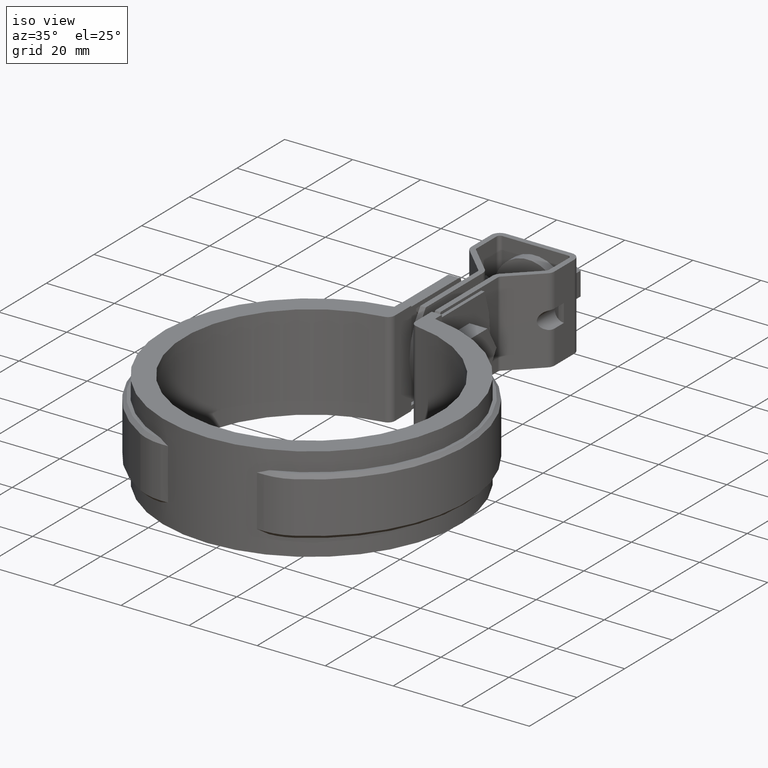
[diagram: clean part render]
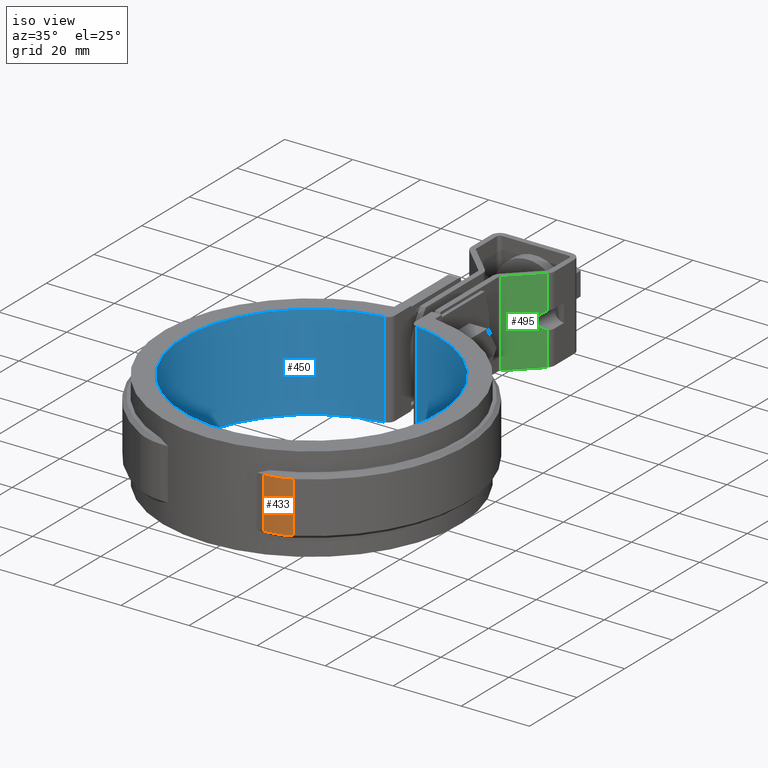
[diagram: same view with three faces highlighted in distinct colors, each labeled with its STEP entity id]
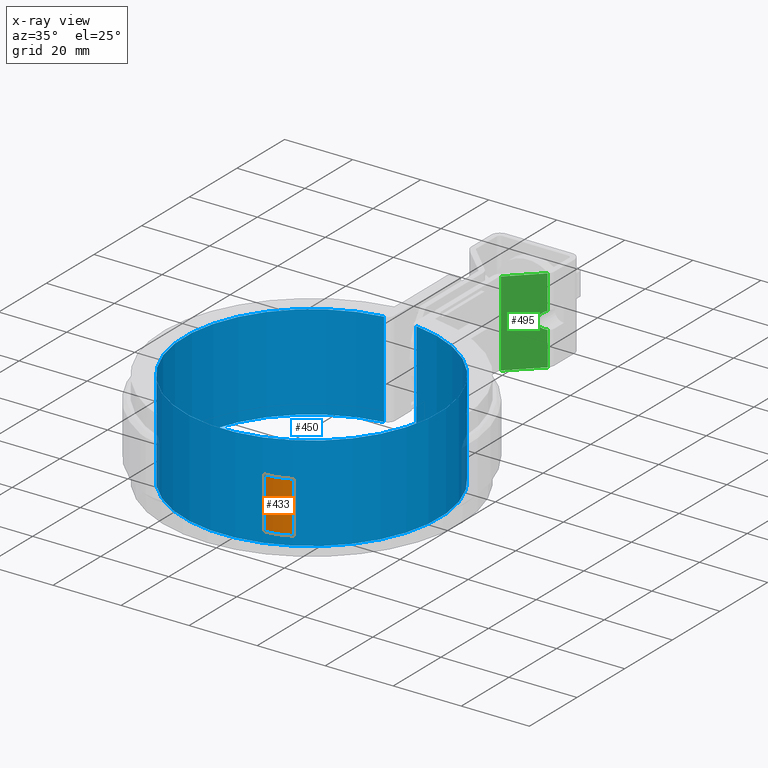
[diagram: x-ray of the same camera — body ghosted, the three highlighted faces saturated]
A machine part, iso view with three faces highlighted in distinct colors.
The next image is the same camera in x-ray (body ghosted, the three faces saturated) — at least one of them is partly hidden behind the body in this view.
Their STEP definitions:

[orange] entity #433 — the highlighted cylindrical surface (partial cylindrical patch) has radius 15 mm, axis along (0, 0, 1).
#433 = ADVANCED_FACE( '', ( #814 ), #815, .T. );
#814 = FACE_OUTER_BOUND( '', #1730, .T. );
#815 = CYLINDRICAL_SURFACE( '', #1731, 15.0000000000000 );
#1730 = EDGE_LOOP( '', ( #3390, #3391, #3392, #3393 ) );
#1731 = AXIS2_PLACEMENT_3D( '', #3394, #3395, #3396 );
#3390 = ORIENTED_EDGE( '', *, *, #5552, .F. );
#3391 = ORIENTED_EDGE( '', *, *, #5553, .T. );
#3392 = ORIENTED_EDGE( '', *, *, #5480, .T. );
#3393 = ORIENTED_EDGE( '', *, *, #5550, .T. );
#3394 = CARTESIAN_POINT( '', ( 15.1393526942205, -26.6500000000000, 8.50000000000000 ) );
#3395 = DIRECTION( '', ( 0.000000000000000, 0.000000000000000, 1.00000000000000 ) );
#3396 = DIRECTION( '', ( -0.109529025191676, -0.993983597772399, 0.000000000000000 ) );
#5480 = EDGE_CURVE( '', #6426, #6427, #6428, .T. );
#5550 = EDGE_CURVE( '', #6427, #6543, #6545, .T. );
#5552 = EDGE_CURVE( '', #6547, #6543, #6548, .T. );
#5553 = EDGE_CURVE( '', #6547, #6426, #6549, .F. );
#6426 = VERTEX_POINT( '', #8914 );
#6427 = VERTEX_POINT( '', #8915 );
#6428 = LINE( '', #8916, #8917 );
#6543 = VERTEX_POINT( '', #9110 );
#6545 = CIRCLE( '', #9113, 15.0000000000000 );
#6547 = VERTEX_POINT( '', #9115 );
#6548 = LINE( '', #9116, #9117 );
#6549 = CIRCLE( '', #9118, 15.0000000000000 );
#8914 = CARTESIAN_POINT( '', ( 15.1393526942205, -41.6500000000000, 7.50000000000000 ) );
#8915 = CARTESIAN_POINT( '', ( 15.1393526942205, -41.6500000000000, -7.50000000000000 ) );
#8916 = CARTESIAN_POINT( '', ( 15.1393526942205, -41.6500000000000, 8.50000000000000 ) );
#8917 = VECTOR( '', #10837, 1000.00000000000 );
#9110 = CARTESIAN_POINT( '', ( 22.5484975690429, -39.6924143556281, -7.50000000000000 ) );
#9113 = AXIS2_PLACEMENT_3D( '', #10951, #10952, #10953 );
#9115 = CARTESIAN_POINT( '', ( 22.5484975690429, -39.6924143556281, 7.50000000000000 ) );
#9116 = CARTESIAN_POINT( '', ( 22.5484975690429, -39.6924143556281, 8.50000000000000 ) );
#9117 = VECTOR( '', #10957, 1000.00000000000 );
#9118 = AXIS2_PLACEMENT_3D( '', #10958, #10959, #10960 );
#10837 = DIRECTION( '', ( 0.000000000000000, 0.000000000000000, -1.00000000000000 ) );
#10951 = CARTESIAN_POINT( '', ( 15.1393526942205, -26.6500000000000, -7.50000000000000 ) );
#10952 = DIRECTION( '', ( 0.000000000000000, 0.000000000000000, 1.00000000000000 ) );
#10953 = DIRECTION( '', ( 1.00000000000000, 0.000000000000000, 0.000000000000000 ) );
#10957 = DIRECTION( '', ( 0.000000000000000, 0.000000000000000, -1.00000000000000 ) );
#10958 = CARTESIAN_POINT( '', ( 15.1393526942205, -26.6500000000000, 7.50000000000000 ) );
#10959 = DIRECTION( '', ( 0.000000000000000, 0.000000000000000, 1.00000000000000 ) );
#10960 = DIRECTION( '', ( 1.00000000000000, 0.000000000000000, 0.000000000000000 ) );

[blue] entity #450 — the highlighted cylindrical surface (partial cylindrical patch) has radius 37.5 mm, axis along (0, 0, -1).
#450 = ADVANCED_FACE( '', ( #850 ), #851, .F. );
#850 = FACE_OUTER_BOUND( '', #1766, .T. );
#851 = CYLINDRICAL_SURFACE( '', #1767, 37.5000000000000 );
#1766 = EDGE_LOOP( '', ( #3532, #3533, #3534, #3535 ) );
#1767 = AXIS2_PLACEMENT_3D( '', #3536, #3537, #3538 );
#3532 = ORIENTED_EDGE( '', *, *, #5519, .T. );
#3533 = ORIENTED_EDGE( '', *, *, #5574, .T. );
#3534 = ORIENTED_EDGE( '', *, *, #5454, .F. );
#3535 = ORIENTED_EDGE( '', *, *, #5575, .T. );
#3536 = CARTESIAN_POINT( '', ( 0.000000000000000, 0.000000000000000, -14.0000000000000 ) );
#3537 = DIRECTION( '', ( 0.000000000000000, 0.000000000000000, -1.00000000000000 ) );
#3538 = DIRECTION( '', ( 1.00000000000000, -6.07153216591882E-017, 0.000000000000000 ) );
#5454 = EDGE_CURVE( '', #6376, #6378, #6379, .T. );
#5519 = EDGE_CURVE( '', #6498, #6496, #6499, .T. );
#5574 = EDGE_CURVE( '', #6496, #6378, #6576, .T. );
#5575 = EDGE_CURVE( '', #6376, #6498, #6577, .F. );
#6376 = VERTEX_POINT( '', #8794 );
#6378 = VERTEX_POINT( '', #8796 );
#6379 = CIRCLE( '', #8797, 37.5000000000000 );
#6496 = VERTEX_POINT( '', #9043 );
#6498 = VERTEX_POINT( '', #9045 );
#6499 = CIRCLE( '', #9046, 37.5000000000000 );
#6576 = LINE( '', #9160, #9161 );
#6577 = LINE( '', #9162, #9163 );
#8794 = CARTESIAN_POINT( '', ( 4.74683544303798, 37.1983541743008, 14.0000000000000 ) );
#8796 = CARTESIAN_POINT( '', ( -4.74683544303799, 37.1983541743008, 14.0000000000000 ) );
#8797 = AXIS2_PLACEMENT_3D( '', #10811, #10812, #10813 );
#9043 = CARTESIAN_POINT( '', ( -4.74683544303799, 37.1983541743008, -14.0000000000000 ) );
#9045 = CARTESIAN_POINT( '', ( 4.74683544303798, 37.1983541743008, -14.0000000000000 ) );
#9046 = AXIS2_PLACEMENT_3D( '', #10888, #10889, #10890 );
#9160 = CARTESIAN_POINT( '', ( -4.74683544303799, 37.1983541743008, -14.0000000000000 ) );
#9161 = VECTOR( '', #10991, 1000.00000000000 );
#9162 = CARTESIAN_POINT( '', ( 4.74683544303798, 37.1983541743008, -14.0000000000000 ) );
#9163 = VECTOR( '', #10992, 1000.00000000000 );
#10811 = CARTESIAN_POINT( '', ( 0.000000000000000, 0.000000000000000, 14.0000000000000 ) );
#10812 = DIRECTION( '', ( 0.000000000000000, 0.000000000000000, -1.00000000000000 ) );
#10813 = DIRECTION( '', ( 1.00000000000000, -6.07153216591882E-017, 0.000000000000000 ) );
#10888 = CARTESIAN_POINT( '', ( 0.000000000000000, 0.000000000000000, -14.0000000000000 ) );
#10889 = DIRECTION( '', ( 0.000000000000000, 0.000000000000000, -1.00000000000000 ) );
#10890 = DIRECTION( '', ( 1.00000000000000, -6.07153216591882E-017, 0.000000000000000 ) );
#10991 = DIRECTION( '', ( 0.000000000000000, 0.000000000000000, 1.00000000000000 ) );
#10992 = DIRECTION( '', ( 0.000000000000000, 0.000000000000000, 1.00000000000000 ) );

[green] entity #495 — the highlighted planar face has unit normal (0.6983, -0.7158, 0).
#495 = ADVANCED_FACE( '', ( #947 ), #948, .T. );
#947 = FACE_OUTER_BOUND( '', #1863, .T. );
#948 = PLANE( '', #1864 );
#1863 = EDGE_LOOP( '', ( #3934, #3935, #3936, #3937, #3938, #3939 ) );
#1864 = AXIS2_PLACEMENT_3D( '', #3940, #3941, #3942 );
#3934 = ORIENTED_EDGE( '', *, *, #5702, .T. );
#3935 = ORIENTED_EDGE( '', *, *, #5708, .F. );
#3936 = ORIENTED_EDGE( '', *, *, #5615, .T. );
#3937 = ORIENTED_EDGE( '', *, *, #5634, .F. );
#3938 = ORIENTED_EDGE( '', *, *, #5594, .F. );
#3939 = ORIENTED_EDGE( '', *, *, #5709, .F. );
#3940 = CARTESIAN_POINT( '', ( 3.90167616447229, 75.2503979413678, 12.5000000000035 ) );
#3941 = DIRECTION( '', ( 0.698323835530497, -0.715781964518509, 9.71445964287386E-016 ) );
#3942 = DIRECTION( '', ( -0.715781964518509, -0.698323835530497, -4.17751229416792E-014 ) );
#5594 = EDGE_CURVE( '', #6611, #6613, #6614, .T. );
#5615 = EDGE_CURVE( '', #6651, #6652, #6653, .T. );
#5634 = EDGE_CURVE( '', #6613, #6652, #6684, .T. );
#5702 = EDGE_CURVE( '', #6791, #6789, #6792, .T. );
#5708 = EDGE_CURVE( '', #6651, #6789, #6799, .T. );
#5709 = EDGE_CURVE( '', #6791, #6611, #6800, .T. );
#6611 = VERTEX_POINT( '', #9208 );
#6613 = VERTEX_POINT( '', #9210 );
#6614 = LINE( '', #9211, #9212 );
#6651 = VERTEX_POINT( '', #9260 );
#6652 = VERTEX_POINT( '', #9261 );
#6653 = ELLIPSE( '', #9262, 3.70224472166266, 2.64999999999997 );
#6684 = LINE( '', #9328, #9329 );
#6789 = VERTEX_POINT( '', #9502 );
#6791 = VERTEX_POINT( '', #9504 );
#6792 = LINE( '', #9505, #9506 );
#6799 = LINE( '', #9516, #9517 );
#6800 = LINE( '', #9518, #9519 );
#9208 = CARTESIAN_POINT( '', ( 3.30167616447228, 74.6650321147782, 12.5000000000035 ) );
#9210 = CARTESIAN_POINT( '', ( 11.4656419723821, 82.6298764371055, 12.5000000000040 ) );
#9211 = CARTESIAN_POINT( '', ( 3.90167616447229, 75.2503979413678, 12.5000000000035 ) );
#9212 = VECTOR( '', #11025, 1000.00000000000 );
#9260 = CARTESIAN_POINT( '', ( 11.4656419723825, 82.6298764371058, -2.53126104629425 ) );
#9261 = CARTESIAN_POINT( '', ( 11.4656419723824, 82.6298764371057, 2.53126104630222 ) );
#9262 = AXIS2_PLACEMENT_3D( '', #11064, #11065, #11066 );
#9328 = CARTESIAN_POINT( '', ( 11.4656419723821, 82.6298764371055, 12.5000000000040 ) );
#9329 = VECTOR( '', #11091, 1000.00000000000 );
#9502 = CARTESIAN_POINT( '', ( 11.4656419723829, 82.6298764371062, -12.4999999999960 ) );
#9504 = CARTESIAN_POINT( '', ( 3.30167616447305, 74.6650321147789, -12.4999999999965 ) );
#9505 = CARTESIAN_POINT( '', ( 3.90167616447306, 75.2503979413685, -12.4999999999965 ) );
#9506 = VECTOR( '', #11197, 1000.00000000000 );
#9516 = CARTESIAN_POINT( '', ( 11.4656419723821, 82.6298764371055, 12.5000000000040 ) );
#9517 = VECTOR( '', #11207, 1000.00000000000 );
#9518 = CARTESIAN_POINT( '', ( 3.30167616447228, 74.6650321147782, 12.5000000000035 ) );
#9519 = VECTOR( '', #11208, 1000.00000000000 );
#11025 = DIRECTION( '', ( 0.715781964518505, 0.698323835530500, 4.17751229416792E-014 ) );
#11064 = CARTESIAN_POINT( '', ( 12.2500000000031, 83.3951037457397, 4.02455846426619E-012 ) );
#11065 = DIRECTION( '', ( -0.698323835530495, 0.715781964518510, -1.00654841205320E-015 ) );
#11066 = DIRECTION( '', ( 0.715781964518510, 0.698323835530495, 4.18111029523031E-014 ) );
#11091 = DIRECTION( '', ( 3.05802634389892E-014, 2.84772205816503E-014, -1.00000000000000 ) );
#11197 = DIRECTION( '', ( 0.715781964518505, 0.698323835530500, 4.17751229416792E-014 ) );
#11207 = DIRECTION( '', ( 3.05802634389892E-014, 2.84772205816503E-014, -1.00000000000000 ) );
#11208 = DIRECTION( '', ( -3.06414937566803E-014, -2.85369574741963E-014, 1.00000000000000 ) );